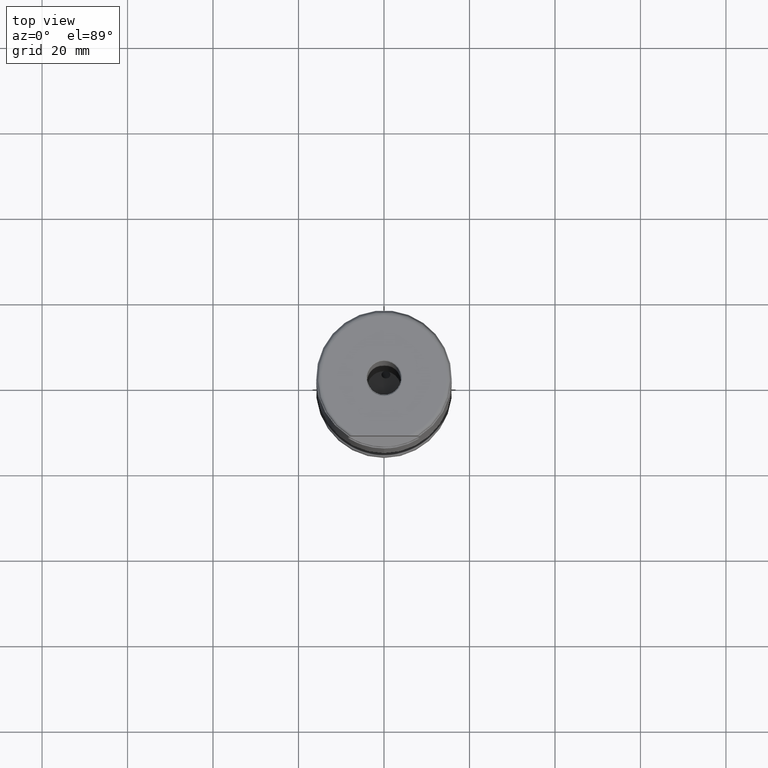
[diagram: clean part render]
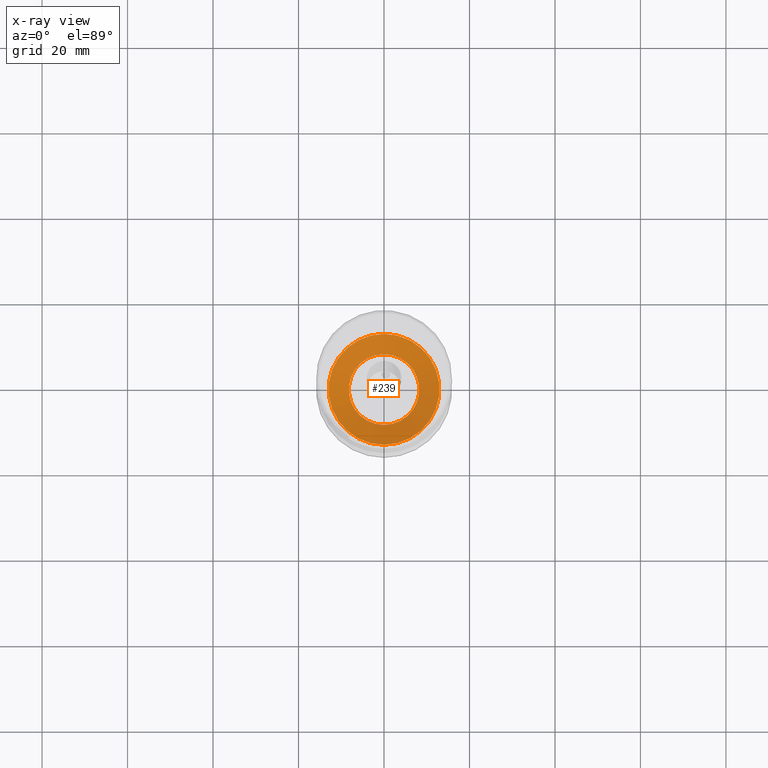
[diagram: x-ray — body ghosted, one internal face saturated and labeled with its STEP entity id]
A machine part, top view, then the same camera in x-ray: the body is ghosted and one INTERNAL B-rep face — a face not visible from any outside direction — is saturated and labeled: STEP entity #239.
In plain terms, the highlighted face is a SurfaceOfRevolution surface.
Its self-contained STEP definition (entity closure, byte-faithful):
#113=SURFACE_OF_REVOLUTION('',#984,#136);
#136=AXIS1_PLACEMENT('',#2139,#1281);
#239=ADVANCED_FACE('',(#394,#395),#113,.F.);
#308=CIRCLE('',#1081,8.25342123641288);
#309=CIRCLE('',#1082,12.9667934913485);
#394=FACE_BOUND('',#508,.T.);
#395=FACE_BOUND('',#509,.T.);
#508=EDGE_LOOP('',(#723));
#509=EDGE_LOOP('',(#724));
#723=ORIENTED_EDGE('',*,*,#914,.F.);
#724=ORIENTED_EDGE('',*,*,#915,.T.);
#821=VERTEX_POINT('',#2123);
#822=VERTEX_POINT('',#2132);
#914=EDGE_CURVE('',#821,#821,#308,.T.);
#915=EDGE_CURVE('',#822,#822,#309,.T.);
#984=B_SPLINE_CURVE_WITH_KNOTS('',5,(#2133,#2134,#2135,#2136,#2137,#2138),
 .UNSPECIFIED.,.F.,.F.,(6,6),(0.,1.),.UNSPECIFIED.);
#1081=AXIS2_PLACEMENT_3D('',#2122,#1276,#1277);
#1082=AXIS2_PLACEMENT_3D('',#2131,#1279,#1280);
#1276=DIRECTION('',(0.,1.17145536458252E-15,1.));
#1277=DIRECTION('',(0.,1.,-1.15600292831039E-15));
#1279=DIRECTION('',(0.,1.17145536458252E-15,1.));
#1280=DIRECTION('',(0.,1.,-1.20403793692002E-15));
#1281=DIRECTION('',(0.,-1.17145536458252E-15,-1.));
#2122=CARTESIAN_POINT('',(0.,8.16762128247895E-15,6.9722001617959));
#2123=CARTESIAN_POINT('',(0.,8.25342123641289,6.97220016179589));
#2131=CARTESIAN_POINT('',(0.,1.13023058757378E-14,9.64808922085191));
#2132=CARTESIAN_POINT('',(0.,12.9667934913485,9.6480892208519));
#2133=CARTESIAN_POINT('',(12.9667934913484,1.13023058757371E-14,9.64808922085133));
#2134=CARTESIAN_POINT('',(12.0103425473729,1.07043796759296E-14,9.13767609041115));
#2135=CARTESIAN_POINT('',(11.0605644462447,1.00918025577818E-14,8.61475636451435));
#2136=CARTESIAN_POINT('',(10.1176573674737,9.46476754983711E-15,8.07949481985607));
#2137=CARTESIAN_POINT('',(9.18183227469694,8.82339515924501E-15,7.53199432604027));
#2138=CARTESIAN_POINT('',(8.25342123641288,8.16762128247895E-15,6.9722001617959));
#2139=CARTESIAN_POINT('',(0.,0.,0.));